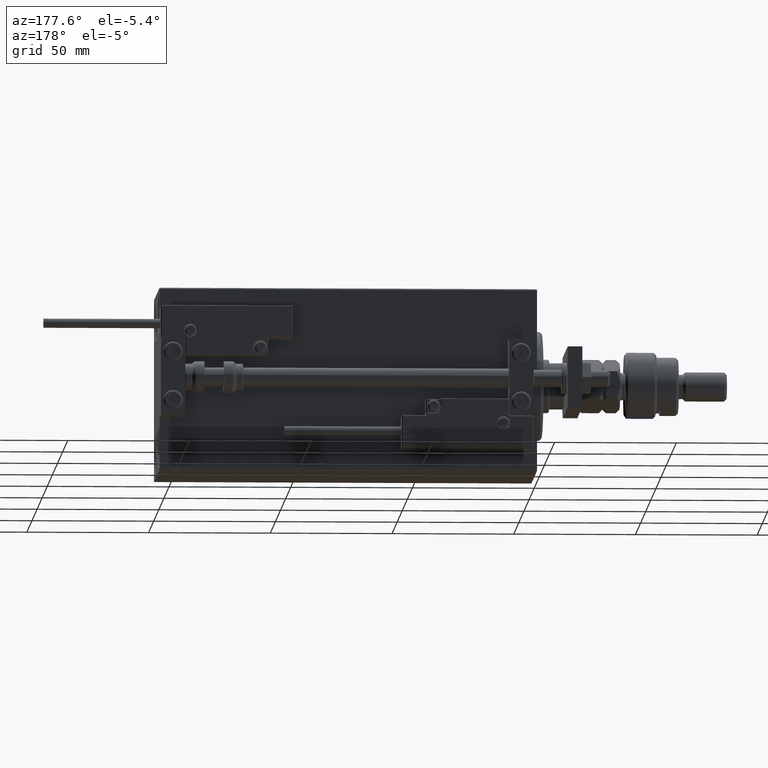
[diagram: clean part render]
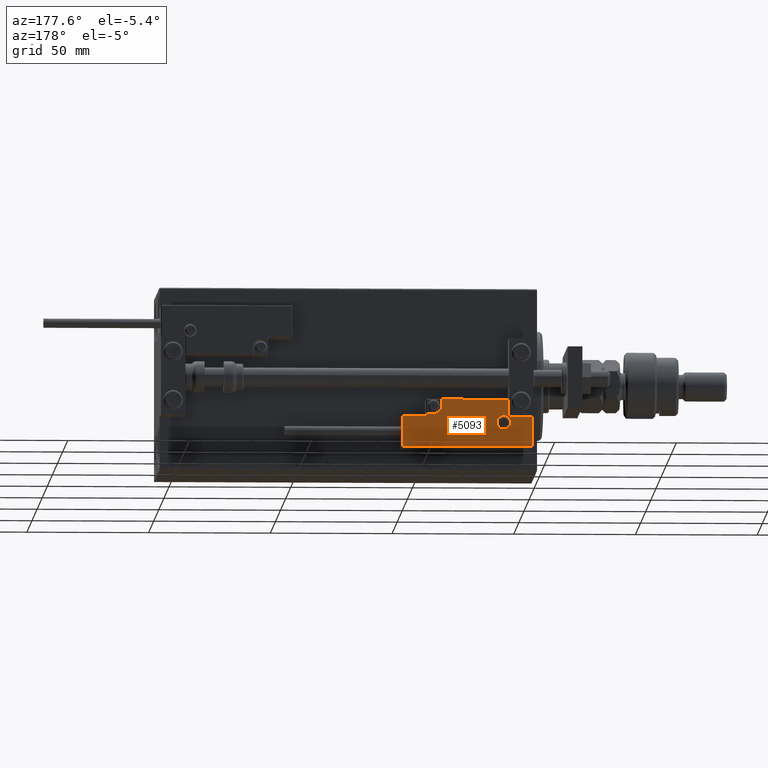
[diagram: same view with one face highlighted and labeled with its STEP entity id]
A machine part, auxiliary view. The second image highlights one B-rep face of the part: STEP entity #5093.
In plain terms, the highlighted planar face has unit normal (-0, 1, -0).
Its self-contained STEP definition (entity closure, byte-faithful):
#39 = ORIENTED_EDGE ( 'NONE', *, *, #1993, .T. ) ;
#252 = ORIENTED_EDGE ( 'NONE', *, *, #17324, .T. ) ;
#821 = DIRECTION ( 'NONE',  ( 0.000000000000000000, 1.000000000000000000, -0.000000000000000000 ) ) ;
#1794 = FACE_BOUND ( 'NONE', #9652, .T. ) ;
#1993 = EDGE_CURVE ( 'NONE', #9210, #2941, #25195, .T. ) ;
#2077 = VERTEX_POINT ( 'NONE', #41970 ) ;
#2941 = VERTEX_POINT ( 'NONE', #5959 ) ;
#3347 = VECTOR ( 'NONE', #24662, 1000.000000000000000 ) ;
#3432 = DIRECTION ( 'NONE',  ( 0.000000000000000000, -0.000000000000000000, -1.000000000000000000 ) ) ;
#3548 = ORIENTED_EDGE ( 'NONE', *, *, #39250, .T. ) ;
#3552 = LINE ( 'NONE', #30789, #15715 ) ;
#3606 = EDGE_CURVE ( 'NONE', #6357, #17274, #4254, .T. ) ;
#4254 = LINE ( 'NONE', #33057, #22172 ) ;
#5093 = ADVANCED_FACE ( 'NONE', ( #1794, #34331 ), #50312, .T. ) ;
#5124 = VERTEX_POINT ( 'NONE', #50047 ) ;
#5160 = VECTOR ( 'NONE', #38353, 1000.000000000000000 ) ;
#5650 = EDGE_CURVE ( 'NONE', #2077, #6357, #33288, .T. ) ;
#5959 = CARTESIAN_POINT ( 'NONE',  ( -26.69999999999994600, 7.300000000000005151, 14.00000000000000000 ) ) ;
#5961 = EDGE_LOOP ( 'NONE', ( #52205, #3548, #11988, #7608, #47449, #37252, #34534, #9452, #252, #39, #27596 ) ) ;
#6124 = CARTESIAN_POINT ( 'NONE',  ( -16.69999999999999218, 7.300000000000003375, 14.00000000000000000 ) ) ;
#6327 = CARTESIAN_POINT ( 'NONE',  ( 10.69999999999999929, 3.000000000000003109, 14.00000000000000000 ) ) ;
#6357 = VERTEX_POINT ( 'NONE', #45736 ) ;
#7608 = ORIENTED_EDGE ( 'NONE', *, *, #5650, .T. ) ;
#7945 = DIRECTION ( 'NONE',  ( 0.000000000000000000, -1.000000000000000000, 0.000000000000000000 ) ) ;
#9210 = VERTEX_POINT ( 'NONE', #44257 ) ;
#9452 = ORIENTED_EDGE ( 'NONE', *, *, #38253, .T. ) ;
#9652 = EDGE_LOOP ( 'NONE', ( #28429, #24269 ) ) ;
#11816 = LINE ( 'NONE', #19303, #26663 ) ;
#11988 = ORIENTED_EDGE ( 'NONE', *, *, #23195, .T. ) ;
#12028 = CARTESIAN_POINT ( 'NONE',  ( 26.70000000000006324, 20.00000000000001776, 14.00000000000000000 ) ) ;
#12970 = LINE ( 'NONE', #26282, #35854 ) ;
#14079 = EDGE_CURVE ( 'NONE', #2941, #20225, #11816, .T. ) ;
#14527 = VECTOR ( 'NONE', #23077, 1000.000000000000000 ) ;
#14547 = AXIS2_PLACEMENT_3D ( 'NONE', #18132, #34395, #38911 ) ;
#14557 = VERTEX_POINT ( 'NONE', #40157 ) ;
#14934 = VERTEX_POINT ( 'NONE', #40299 ) ;
#15108 = LINE ( 'NONE', #6327, #42994 ) ;
#15288 = EDGE_CURVE ( 'NONE', #45566, #32755, #19887, .T. ) ;
#15715 = VECTOR ( 'NONE', #47033, 1000.000000000000000 ) ;
#17274 = VERTEX_POINT ( 'NONE', #39551 ) ;
#17324 = EDGE_CURVE ( 'NONE', #14557, #9210, #3552, .T. ) ;
#18132 = CARTESIAN_POINT ( 'NONE',  ( 13.99999999999999822, 3.000000000000002665, 14.00000000000000000 ) ) ;
#18896 = VECTOR ( 'NONE', #7945, 1000.000000000000000 ) ;
#19303 = CARTESIAN_POINT ( 'NONE',  ( -16.99999999999999289, 7.300000000000003375, 14.00000000000000000 ) ) ;
#19887 = CIRCLE ( 'NONE', #33513, 2.800000000000000266 ) ;
#20225 = VERTEX_POINT ( 'NONE', #6124 ) ;
#22072 = DIRECTION ( 'NONE',  ( 1.000000000000000000, 0.000000000000000000, 0.000000000000000000 ) ) ;
#22172 = VECTOR ( 'NONE', #49038, 1000.000000000000000 ) ;
#22339 = DIRECTION ( 'NONE',  ( -0.000000000000000000, 0.000000000000000000, 1.000000000000000000 ) ) ;
#22608 = DIRECTION ( 'NONE',  ( -0.000000000000000000, 1.000000000000000000, -0.000000000000000000 ) ) ;
#23077 = DIRECTION ( 'NONE',  ( 1.000000000000000000, -0.000000000000000000, 0.000000000000000000 ) ) ;
#23195 = EDGE_CURVE ( 'NONE', #43293, #2077, #15108, .T. ) ;
#23552 = EDGE_CURVE ( 'NONE', #32755, #45566, #31940, .T. ) ;
#24104 = DIRECTION ( 'NONE',  ( 1.000000000000000000, -1.734723475976815230E-16, 0.000000000000000000 ) ) ;
#24269 = ORIENTED_EDGE ( 'NONE', *, *, #15288, .T. ) ;
#24548 = CARTESIAN_POINT ( 'NONE',  ( 10.69999999999999929, 0.3000000000000032085, 14.00000000000000000 ) ) ;
#24662 = DIRECTION ( 'NONE',  ( -8.006416042969869188E-16, -1.000000000000000000, 0.000000000000000000 ) ) ;
#25195 = LINE ( 'NONE', #37452, #3347 ) ;
#25465 = CARTESIAN_POINT ( 'NONE',  ( -11.99999999999994849, 9.800000000000004263, 14.00000000000000000 ) ) ;
#25572 = LINE ( 'NONE', #46081, #5160 ) ;
#26021 = DIRECTION ( 'NONE',  ( 1.000000000000000000, -1.734723475976796001E-16, 0.000000000000000000 ) ) ;
#26282 = CARTESIAN_POINT ( 'NONE',  ( 27.00000000000006395, 7.300000000000007816, 14.00000000000000000 ) ) ;
#26663 = VECTOR ( 'NONE', #24104, 1000.000000000000000 ) ;
#27596 = ORIENTED_EDGE ( 'NONE', *, *, #14079, .T. ) ;
#28378 = DIRECTION ( 'NONE',  ( 0.000000000000000000, -0.000000000000000000, -1.000000000000000000 ) ) ;
#28429 = ORIENTED_EDGE ( 'NONE', *, *, #23552, .T. ) ;
#30329 = CARTESIAN_POINT ( 'NONE',  ( 0.000000000000000000, 0.000000000000000000, 14.00000000000000000 ) ) ;
#30789 = CARTESIAN_POINT ( 'NONE',  ( -26.99999999999993605, 19.70000000000002061, 14.00000000000000000 ) ) ;
#31195 = CARTESIAN_POINT ( 'NONE',  ( -14.79999999999994920, 9.800000000000004263, 14.00000000000000000 ) ) ;
#31940 = CIRCLE ( 'NONE', #50638, 2.800000000000000266 ) ;
#32642 = CARTESIAN_POINT ( 'NONE',  ( -14.79999999999994920, 9.800000000000004263, 14.00000000000000000 ) ) ;
#32755 = VERTEX_POINT ( 'NONE', #25465 ) ;
#33057 = CARTESIAN_POINT ( 'NONE',  ( 17.00000000000000000, 6.300000000000003375, 14.00000000000000000 ) ) ;
#33288 = CIRCLE ( 'NONE', #14547, 3.299999999999997158 ) ;
#33513 = AXIS2_PLACEMENT_3D ( 'NONE', #31195, #3432, #43954 ) ;
#34153 = AXIS2_PLACEMENT_3D ( 'NONE', #30329, #22339, #22072 ) ;
#34331 = FACE_OUTER_BOUND ( 'NONE', #5961, .T. ) ;
#34395 = DIRECTION ( 'NONE',  ( 0.000000000000000000, -0.000000000000000000, -1.000000000000000000 ) ) ;
#34534 = ORIENTED_EDGE ( 'NONE', *, *, #39000, .T. ) ;
#35067 = CARTESIAN_POINT ( 'NONE',  ( 11.00000000000000000, 0.3000000000000032085, 14.00000000000000000 ) ) ;
#35812 = VECTOR ( 'NONE', #821, 1000.000000000000000 ) ;
#35854 = VECTOR ( 'NONE', #26021, 1000.000000000000000 ) ;
#36420 = CARTESIAN_POINT ( 'NONE',  ( -17.59999999999994813, 9.800000000000004263, 14.00000000000000000 ) ) ;
#37252 = ORIENTED_EDGE ( 'NONE', *, *, #39651, .T. ) ;
#37452 = CARTESIAN_POINT ( 'NONE',  ( -26.69999999999994600, 7.000000000000005329, 14.00000000000000000 ) ) ;
#37628 = LINE ( 'NONE', #12028, #35812 ) ;
#38253 = EDGE_CURVE ( 'NONE', #5124, #14557, #37628, .T. ) ;
#38353 = DIRECTION ( 'NONE',  ( 9.912705577010318647E-16, 1.000000000000000000, 0.000000000000000000 ) ) ;
#38911 = DIRECTION ( 'NONE',  ( 1.000000000000000000, 0.000000000000000000, 0.000000000000000000 ) ) ;
#39000 = EDGE_CURVE ( 'NONE', #44703, #5124, #12970, .T. ) ;
#39052 = LINE ( 'NONE', #35067, #14527 ) ;
#39250 = EDGE_CURVE ( 'NONE', #14934, #43293, #39052, .T. ) ;
#39353 = CARTESIAN_POINT ( 'NONE',  ( 16.69999999999999929, 7.300000000000009592, 14.00000000000000000 ) ) ;
#39551 = CARTESIAN_POINT ( 'NONE',  ( 16.69999999999999929, 6.300000000000003375, 14.00000000000000000 ) ) ;
#39651 = EDGE_CURVE ( 'NONE', #17274, #44703, #25572, .T. ) ;
#39830 = DIRECTION ( 'NONE',  ( 1.000000000000000000, 0.000000000000000000, 0.000000000000000000 ) ) ;
#40157 = CARTESIAN_POINT ( 'NONE',  ( 26.70000000000006324, 19.70000000000001705, 14.00000000000000000 ) ) ;
#40299 = CARTESIAN_POINT ( 'NONE',  ( -16.69999999999999218, 0.3000000000000032085, 14.00000000000000000 ) ) ;
#41970 = CARTESIAN_POINT ( 'NONE',  ( 10.69999999999999929, 3.000000000000003109, 14.00000000000000000 ) ) ;
#42994 = VECTOR ( 'NONE', #22608, 1000.000000000000000 ) ;
#43293 = VERTEX_POINT ( 'NONE', #24548 ) ;
#43954 = DIRECTION ( 'NONE',  ( 1.000000000000000000, 0.000000000000000000, 0.000000000000000000 ) ) ;
#44257 = CARTESIAN_POINT ( 'NONE',  ( -26.69999999999993534, 19.70000000000002061, 14.00000000000000000 ) ) ;
#44466 = CARTESIAN_POINT ( 'NONE',  ( -16.69999999999999218, 3.252606517456513302E-15, 14.00000000000000000 ) ) ;
#44703 = VERTEX_POINT ( 'NONE', #39353 ) ;
#45267 = EDGE_CURVE ( 'NONE', #20225, #14934, #47672, .T. ) ;
#45566 = VERTEX_POINT ( 'NONE', #36420 ) ;
#45736 = CARTESIAN_POINT ( 'NONE',  ( 13.99999999999999822, 6.300000000000001599, 14.00000000000000000 ) ) ;
#46081 = CARTESIAN_POINT ( 'NONE',  ( 16.69999999999999929, 7.000000000000009770, 14.00000000000000000 ) ) ;
#47033 = DIRECTION ( 'NONE',  ( -1.000000000000000000, 6.424901762877063495E-17, -0.000000000000000000 ) ) ;
#47449 = ORIENTED_EDGE ( 'NONE', *, *, #3606, .T. ) ;
#47672 = LINE ( 'NONE', #44466, #18896 ) ;
#49038 = DIRECTION ( 'NONE',  ( 1.000000000000000000, 5.782411586589357639E-16, -0.000000000000000000 ) ) ;
#50047 = CARTESIAN_POINT ( 'NONE',  ( 26.70000000000006324, 7.300000000000007816, 14.00000000000000000 ) ) ;
#50312 = PLANE ( 'NONE',  #34153 ) ;
#50638 = AXIS2_PLACEMENT_3D ( 'NONE', #32642, #28378, #39830 ) ;
#52205 = ORIENTED_EDGE ( 'NONE', *, *, #45267, .T. ) ;